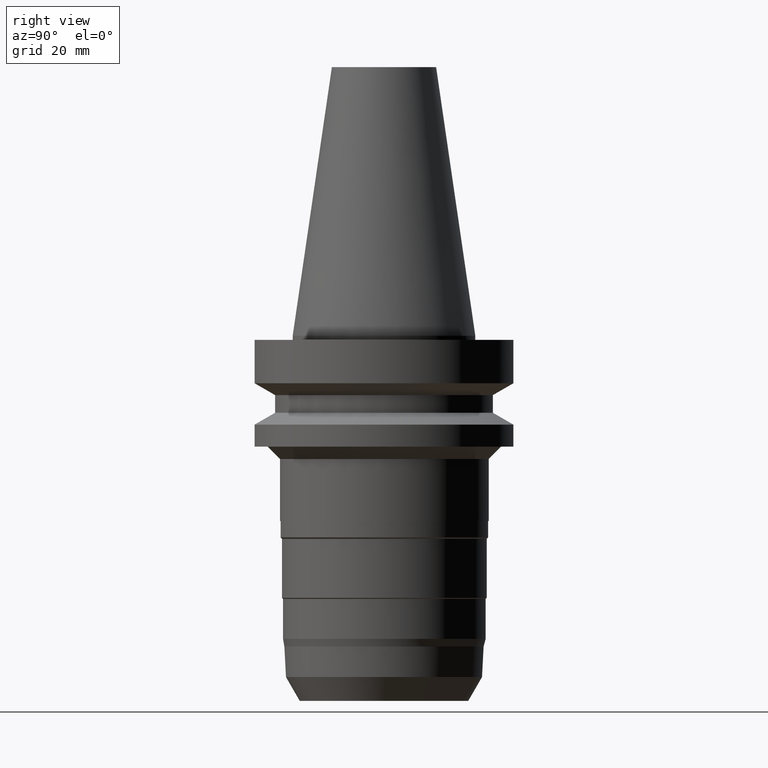
[diagram: clean part render]
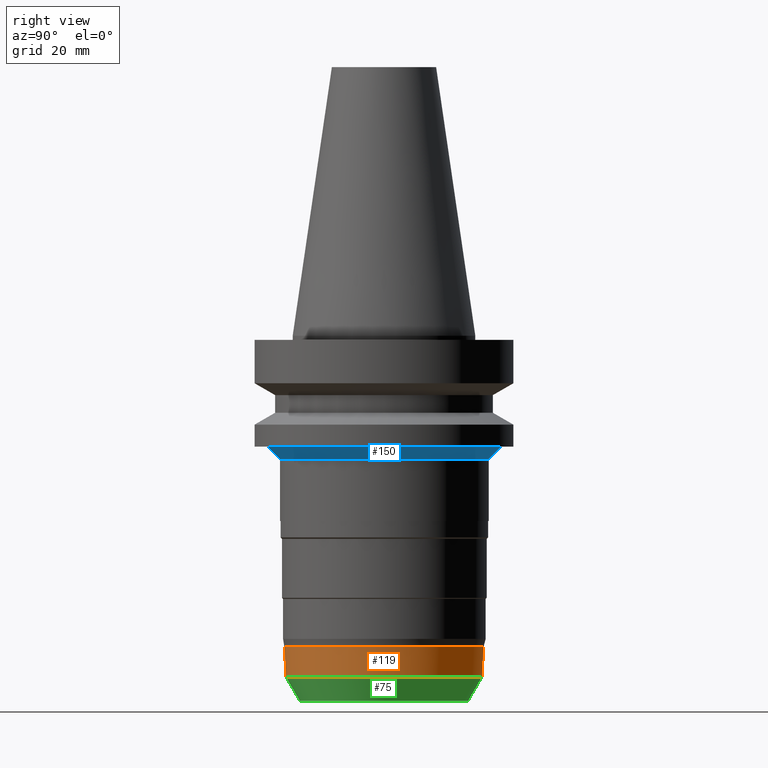
[diagram: same view with three faces highlighted in distinct colors, each labeled with its STEP entity id]
A machine part, right view with three faces highlighted in distinct colors.
Their STEP definitions:

[orange] entity #119 — the highlighted conical surface has half-angle 3 deg.
#119=ADVANCED_FACE('Unnamed[1]',(#276,#277),#278,.T.);
#123=EDGE_CURVE('Unnamed[1]',#283,#283,#284,.T.);
#135=EDGE_CURVE('Unnamed[1]',#301,#301,#302,.T.);
#276=FACE_BOUND('',#476,.T.);
#277=FACE_BOUND('',#477,.T.);
#278=CONICAL_SURFACE('',#478,24.0557884976076,0.052359877559767);
#283=VERTEX_POINT('',#485);
#284=CIRCLE('',#486,23.8615769952158);
#301=VERTEX_POINT('',#508);
#302=CIRCLE('',#509,24.2499999999993);
#476=EDGE_LOOP('',(#685));
#477=EDGE_LOOP('',(#686));
#478=AXIS2_PLACEMENT_3D('',#687,#688,#689);
#485=CARTESIAN_POINT('',(5.08703448979067E-015,23.8615769952158,-83.0775778507314));
#486=AXIS2_PLACEMENT_3D('',#693,#694,#695);
#508=CARTESIAN_POINT('',(4.63320779074766E-015,24.2499999999993,-75.6660254037895));
#509=AXIS2_PLACEMENT_3D('',#713,#714,#715);
#685=ORIENTED_EDGE('',*,*,#123,.F.);
#686=ORIENTED_EDGE('',*,*,#135,.T.);
#687=CARTESIAN_POINT('',(4.86012114026916E-015,9.72024228053832E-015,-79.3718016272605));
#688=DIRECTION('',(-6.12323399573677E-017,-1.22464679914721E-016,1.0));
#689=DIRECTION('',(-1.23259516440747E-032,1.0,1.22464679914721E-016));
#693=CARTESIAN_POINT('',(5.08703448979067E-015,1.01740689795813E-014,-83.0775778507314));
#694=DIRECTION('',(6.12323399573677E-017,1.22464679914751E-016,-1.0));
#695=DIRECTION('',(-1.23259516440783E-032,1.0,1.22464679914751E-016));
#713=CARTESIAN_POINT('',(4.63320779074766E-015,9.26641558149532E-015,-75.6660254037895));
#714=DIRECTION('',(6.12323399573677E-017,1.22464679914758E-016,-1.0));
#715=DIRECTION('',(-1.23259516440787E-032,1.0,1.22464679914758E-016));

[blue] entity #150 — the highlighted conical surface has half-angle 45 deg.
#90=EDGE_CURVE('Unnamed[1]',#230,#230,#231,.T.);
#150=ADVANCED_FACE('Unnamed[1]',(#325,#326),#327,.T.);
#167=EDGE_CURVE('Unnamed[1]',#352,#352,#353,.T.);
#230=VERTEX_POINT('',#419);
#231=CIRCLE('',#420,25.5);
#325=FACE_BOUND('',#537,.T.);
#326=FACE_BOUND('',#538,.T.);
#327=CONICAL_SURFACE('',#539,27.0000000000002,0.785398163397458);
#352=VERTEX_POINT('',#572);
#353=CIRCLE('',#573,28.5000000000004);
#419=CARTESIAN_POINT('',(1.83697019872104E-015,25.5,-30.0000000000001));
#420=AXIS2_PLACEMENT_3D('',#633,#634,#635);
#537=EDGE_LOOP('',(#741));
#538=EDGE_LOOP('',(#742));
#539=AXIS2_PLACEMENT_3D('',#743,#744,#745);
#572=CARTESIAN_POINT('',(1.65327317884891E-015,28.5000000000004,-26.9999999999998));
#573=AXIS2_PLACEMENT_3D('',#770,#771,#772);
#633=CARTESIAN_POINT('',(1.83697019872104E-015,3.67394039744207E-015,-30.0000000000001));
#634=DIRECTION('',(6.12323399573677E-017,1.22464679914725E-016,-1.0));
#635=DIRECTION('',(-1.23259516440783E-032,1.0,1.22464679914725E-016));
#741=ORIENTED_EDGE('',*,*,#90,.F.);
#742=ORIENTED_EDGE('',*,*,#167,.T.);
#743=CARTESIAN_POINT('',(1.74512168878498E-015,3.49024337756995E-015,-28.5));
#744=DIRECTION('',(-6.12323399573677E-017,-1.22464679914752E-016,1.0));
#745=DIRECTION('',(-1.23259516440782E-032,1.0,1.22464679914752E-016));
#770=CARTESIAN_POINT('',(1.65327317884891E-015,3.30654635769783E-015,-26.9999999999998));
#771=DIRECTION('',(6.12323399573676E-017,1.2246467991472E-016,-1.0));
#772=DIRECTION('',(-1.23259516440781E-032,1.0,1.2246467991472E-016));

[green] entity #75 — the highlighted conical surface has half-angle 30 deg.
#75=ADVANCED_FACE('Unnamed[1]',(#205,#206),#207,.T.);
#108=EDGE_CURVE('Unnamed[1]',#259,#259,#260,.T.);
#123=EDGE_CURVE('Unnamed[1]',#283,#283,#284,.T.);
#205=FACE_BOUND('',#388,.T.);
#206=FACE_BOUND('',#389,.T.);
#207=CONICAL_SURFACE('',#390,22.180788497608,0.523598775598287);
#259=VERTEX_POINT('',#455);
#260=CIRCLE('',#456,20.5000000000001);
#283=VERTEX_POINT('',#485);
#284=CIRCLE('',#486,23.8615769952158);
#388=EDGE_LOOP('',(#604));
#389=EDGE_LOOP('',(#605));
#390=AXIS2_PLACEMENT_3D('',#606,#607,#608);
#455=CARTESIAN_POINT('',(5.44355502220997E-015,20.5000000000001,-88.8999999999998));
#456=AXIS2_PLACEMENT_3D('',#666,#667,#668);
#485=CARTESIAN_POINT('',(5.08703448979067E-015,23.8615769952158,-83.0775778507314));
#486=AXIS2_PLACEMENT_3D('',#693,#694,#695);
#604=ORIENTED_EDGE('',*,*,#108,.F.);
#605=ORIENTED_EDGE('',*,*,#123,.T.);
#606=CARTESIAN_POINT('',(5.26529475600032E-015,1.05305895120006E-014,-85.9887889253656));
#607=DIRECTION('',(-6.12323399573677E-017,-1.2246467991473E-016,1.0));
#608=DIRECTION('',(-1.23259516440783E-032,1.0,1.2246467991473E-016));
#666=CARTESIAN_POINT('',(5.44355502220997E-015,1.08871100444199E-014,-88.8999999999998));
#667=DIRECTION('',(6.12323399573677E-017,1.22464679914705E-016,-1.0));
#668=DIRECTION('',(-1.23259516440782E-032,1.0,1.22464679914705E-016));
#693=CARTESIAN_POINT('',(5.08703448979067E-015,1.01740689795813E-014,-83.0775778507314));
#694=DIRECTION('',(6.12323399573677E-017,1.22464679914751E-016,-1.0));
#695=DIRECTION('',(-1.23259516440783E-032,1.0,1.22464679914751E-016));